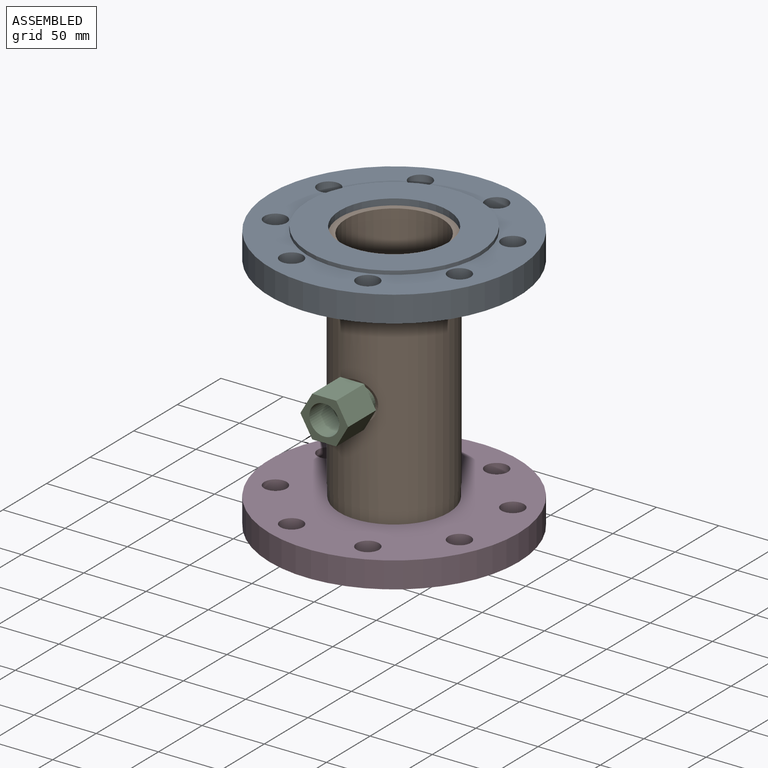
[diagram: assembled view]
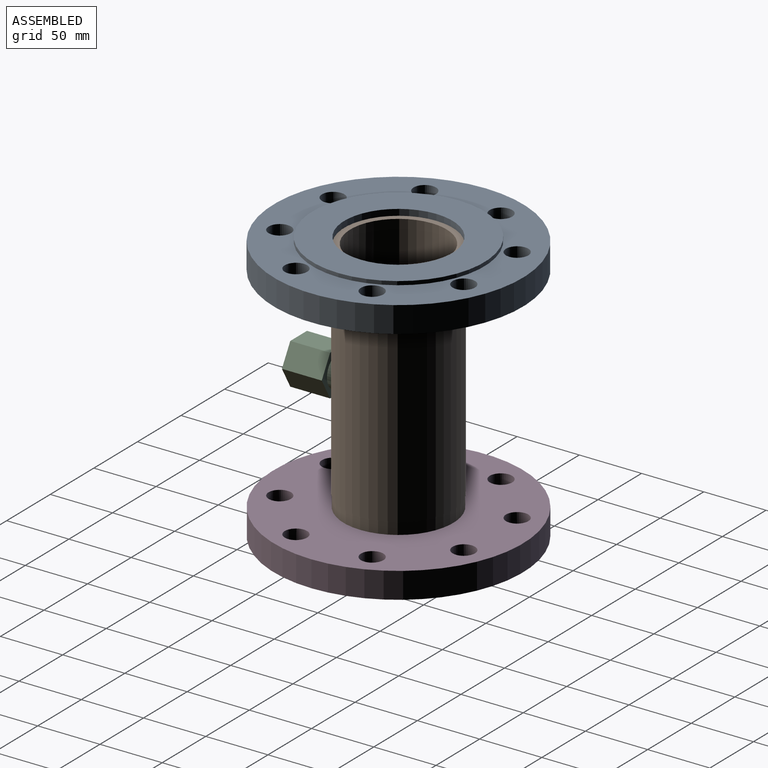
[diagram: assembled view, second angle]
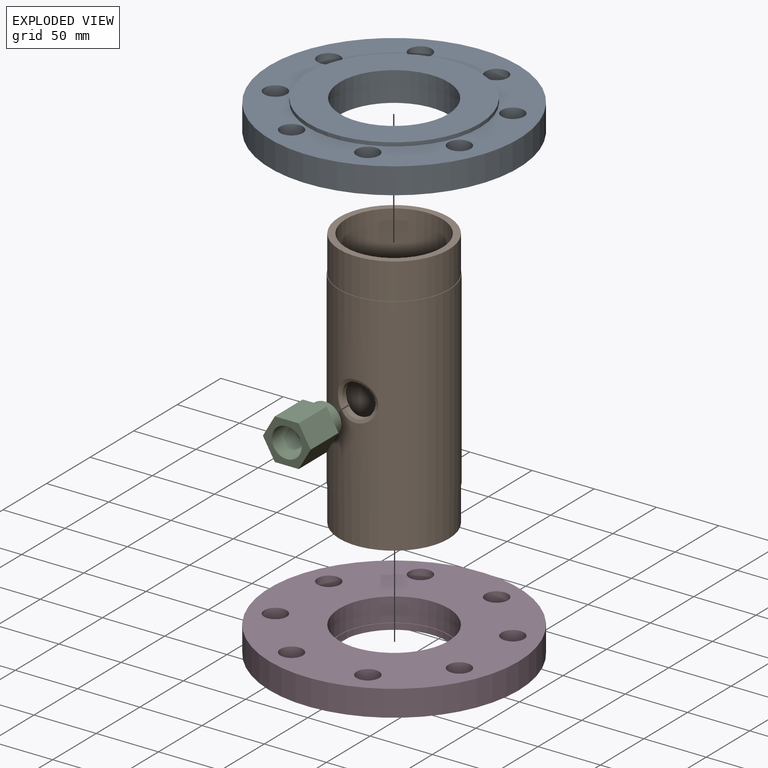
[diagram: exploded view]
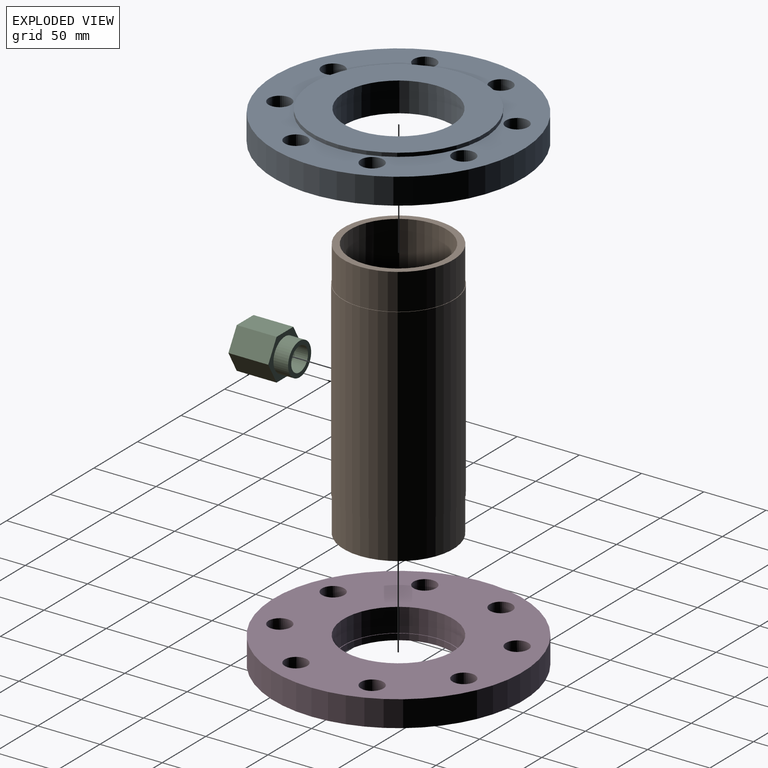
[diagram: exploded view, second angle]
ASSEMBLY  parts=4 mates=3
PART A: 16 faces, bbox 200x200x24 mm
  f0: plane 88x88mm, normal (0,0,1), area 137.4mm2, adj f1,f7
  f1: cylinder r=43.5mm len=87mm, axis (0,0,1), area 1366.6mm2, adj f0,f2
  f2: plane 138x138mm, normal (0,0,-1), area 9012.4mm2, adj f1,f3
  f3: cylinder r=69mm len=138mm, axis (0,0,1), area 1300.6mm2, adj f2,f4
  f4: plane 200x200mm, normal (0,0,-1), area 14423.1mm2, adj f3,f5,f8,f9,f10,f11,f12,f13
  f5: cylinder r=100mm len=200mm, axis (0,0,1), area 13194.7mm2, adj f4,f6
  f6: plane 200x200mm, normal (0,0,1), area 23298.1mm2, adj f5,f7,f8,f9,f10,f11,f12,f13
  f7: cylinder r=44mm len=88mm, axis (0,0,1), area 5252.7mm2, adj f0,f6
  f8: cylinder r=9mm len=21mm, axis (0,0,1), area 1187.5mm2, adj f4,f6
  f9: cylinder r=9mm len=21mm, axis (0,0,1), area 1187.5mm2, adj f4,f6
  f10: cylinder r=9mm len=21mm, axis (0,0,1), area 1187.5mm2, adj f4,f6
  f11: cylinder r=9mm len=21mm, axis (0,0,1), area 1187.5mm2, adj f4,f6
  f12: cylinder r=9mm len=21mm, axis (0,0,1), area 1187.5mm2, adj f4,f6
  f13: cylinder r=9mm len=21mm, axis (0,0,1), area 1187.5mm2, adj f4,f6
  f14: cylinder r=9mm len=21mm, axis (0,0,1), area 1187.5mm2, adj f4,f6
  f15: cylinder r=9mm len=21mm, axis (0,0,1), area 1187.5mm2, adj f4,f6
PART B: 10 faces, bbox 210x88.8x88.8 mm
  f0: cylinder r=38.7mm len=210mm, axis (-1,0,0), area 50509.1mm2, adj f2,f3,f8
  f1: cylinder r=44.4mm len=152mm, axis (-1,0,0), area 41586mm2, adj f5,f6,f9
  f2: plane 88x88mm, normal (-1,0,0), area 1377mm2, adj f0,f7
  f3: plane 88x88mm, normal (1,0,0), area 1377mm2, adj f0,f4
  f4: cylinder r=44mm len=88mm, axis (-1,0,0), area 8017.3mm2, adj f3,f5
  f5: plane 88.8x88.8mm, normal (1,0,0), area 111.1mm2, adj f1,f4
  f6: plane 88.8x88.8mm, normal (-1,0,0), area 111.1mm2, adj f1,f7
  f7: cylinder r=44mm len=88mm, axis (-1,0,0), area 8017.3mm2, adj f2,f6
  f8: cylinder r=13.23mm len=26.45mm, axis (0,1,0), area 356.1mm2, adj f0,f9
  f9: bspline ~32.33x31.52mm, area 272.4mm2, adj f1,f8
PART C: 15 faces, bbox 43.8x38.3x33.2 mm
  f0: plane 38.34x33.2mm, normal (1,0,0), area 502.2mm2, adj f8,f9,f10,f11,f12,f13,f14
  f1: plane 38.34x33.2mm, normal (-1,0,0), area 405.1mm2, adj f2,f9,f10,f11,f12,f13,f14
  f2: cylinder r=13.23mm len=26.45mm, axis (-1,0,0), area 980.5mm2, adj f1,f3
  f3: plane 26.45x26.45mm, normal (-1,0,0), area 256.9mm2, adj f2,f4
  f4: cylinder r=9.65mm len=19.3mm, axis (-1,0,0), area 727.6mm2, adj f3,f5
  f5: plane 19.3x19.3mm, normal (-1,0,0), area 94mm2, adj f4,f6
  f6: cylinder r=7.95mm len=15.9mm, axis (-1,0,0), area 309.7mm2, adj f5,f7
  f7: plane 24x24mm, normal (1,0,0), area 253.8mm2, adj f6,f8
  f8: cylinder r=12mm len=25.6mm, axis (-1,0,0), area 1930.2mm2, adj f0,f7
  f9: plane 32x16.6mm, normal (0,-0.87,0.5), area 613.4mm2, adj f0,f1,f10,f14
  f10: plane 32x19.17mm, normal (0,0,1), area 613.4mm2, adj f0,f1,f9,f11
  f11: plane 32x16.6mm, normal (0,0.87,0.5), area 613.4mm2, adj f0,f1,f10,f12
  f12: plane 32x16.6mm, normal (0,0.87,-0.5), area 613.4mm2, adj f0,f1,f11,f13
  f13: plane 32x19.17mm, normal (0,0,-1), area 613.4mm2, adj f0,f1,f12,f14
  f14: plane 32x16.6mm, normal (0,-0.87,-0.5), area 613.4mm2, adj f0,f1,f9,f13
PART D: same geometry as A
PLACE A rot(axis=(0,1,0),180deg) t=(-0.37,-0.42,207.68)mm
PLACE B rot(axis=(0,-1,0),90deg) t=(-0.37,-0.42,-7.32)mm
PLACE C rot(axis=(0,0,-1),90deg) t=(-0.37,-36.85,97.68)mm
PLACE D t=(-0.37,-0.42,-12.32)mm fixed
MATE fastened B.f0 <-> D.f1  axis (0,0,1) through (-0.37,-0.42,-7.32)mm
MATE fastened C.f2 <-> B.f8  axis (0,1,0) through (-0.37,-36.85,97.68)mm
MATE fastened A.f1 <-> B.f0  axis (0,0,1) through (-0.37,-0.42,202.68)mm
